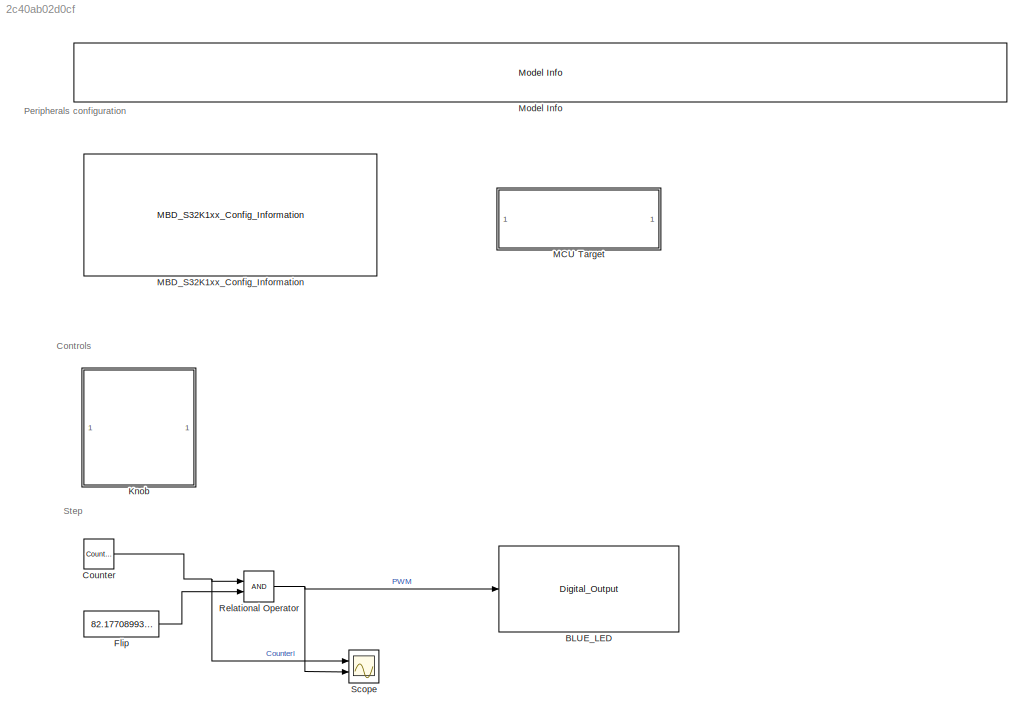
MODEL slx_2c40ab02d0cf
KIND model
CONFIG AbsTol = auto
CONFIG EnableMultiTasking = on
CONFIG FixedStep = 0.1
CONFIG InitFcn = mbd_s32k_consistency_checks(bdroot(gcs));
CONFIG MaxStep = auto
CONFIG MinStep = auto
CONFIG PreLoadFcn = mbd_s32k_examples_preload_cbk;
CONFIG RelTol = 1e-3
CONFIG SampleTimeConstraint = Unconstrained
CONFIG Solver = FixedStepDiscrete
CONFIG SolverName = FixedStepDiscrete
CONFIG StartTime = 0.0
CONFIG StopTime = 1000
BLOCK [Reference] BLUE_LED  REF=mbd_s32k1xx_ec_toolbox/GPIO Blocks/Digital_Output
  Ports = [1]
  SourceBlock = mbd_s32k1xx_ec_toolbox/GPIO Blocks/Digital_Output
  SourceType = gpio_s32k_output
BLOCK [Reference] Counter  REF=simulink/Sources/Counter
Limited
  Ports = [0, 1]
  SourceBlock = simulink/Sources/Counter\nLimited
  SourceProductBaseCode = SL
  SourceProductName = Simulink
  SourceType = Counter Limited
BLOCK [Constant] Flip
  OutDataTypeStr = uint16
  Value = 82.177089930614
BLOCK [SubSystem] Knob
  DialogController = hmiCreateDDGDialog
  IsWebBlock = on
  Ports = []
  RequestExecContextInheritance = off
  Variant = off
BLOCK [Reference] MBD_S32K1xx_Config_Information  REF=mbd_s32k1xx_ec_toolbox/MBD_S32K1xx_Config_Information
  Ports = []
  SourceBlock = mbd_s32k1xx_ec_toolbox/MBD_S32K1xx_Config_Information
  SourceType = MBDTBX_EC_S32K
BLOCK [SubSystem] MCU Target
  AttributesFormatString = MCU Target: %<mcu_target>
  Ports = []
  RequestExecContextInheritance = off
  Variant = off
BLOCK [Reference] Model Info  REF=simulink/Model-Wide
Utilities/Model Info
  Ports = []
  SourceBlock = simulink/Model-Wide\nUtilities/Model Info
  SourceProductBaseCode = SL
  SourceProductName = Simulink
  SourceType = CMBlock
BLOCK [RelationalOperator] Relational Operator
  InputSameDT = off
  OutDataTypeStr = boolean
  Ports = [2, 1]
  RndMeth = Simplest
BLOCK [Scope] Scope
  NumInputPorts = 2
  Ports = [2]
  ScopeSpecificationString = Simulink.scopes.TimeScopeBlockCfg('CurrentConfiguration', extmgr.ConfigurationSet(extmgr.Configuration('Core','General UI',true),extmgr.Configuration('Core','Source UI',true),extmgr.Configuration('Sources','WiredSimulink',true),extmgr.Configuration('Visuals','Time Domain',true,'SerializedDisplays',{struct('MinYLimReal','-16.00000','MaxYLimReal','144.00000','YLabelReal','','MinYLimMag','0.00000','M...<+2038ch>
ANNOTATION (root): Controls
ANNOTATION (root): Peripherals configuration
ANNOTATION (root): Step
NET Counter:1 -> Relational Operator:1, Scope:1
LINE Flip:1 -> Relational Operator:2
NET Relational Operator:1 -> BLUE_LED:1, Scope:2
note: NET lines group one-source signal fan-out (src -> all destinations, sorted); 1:1 wires keep LINE
